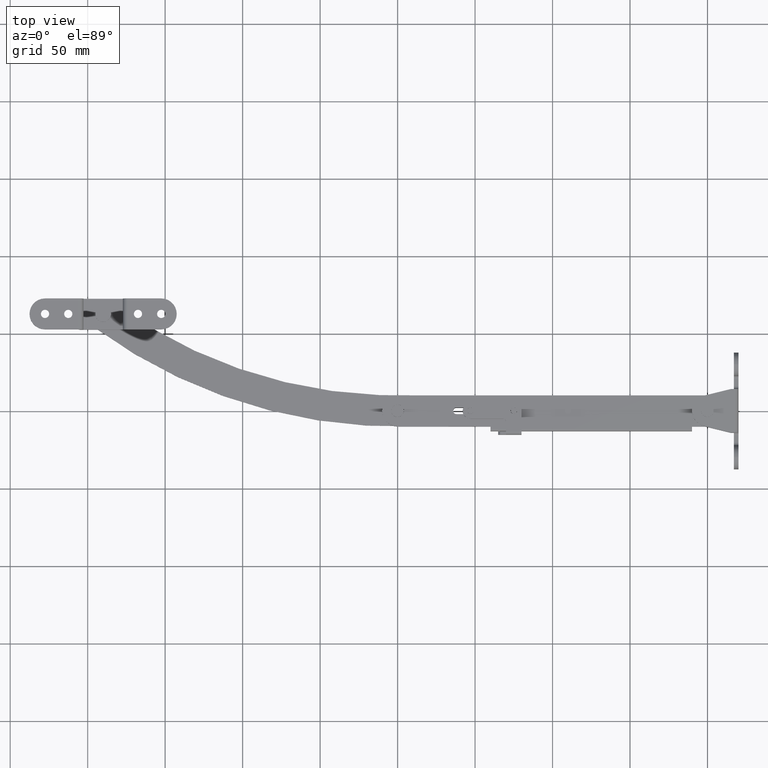
[diagram: clean part render]
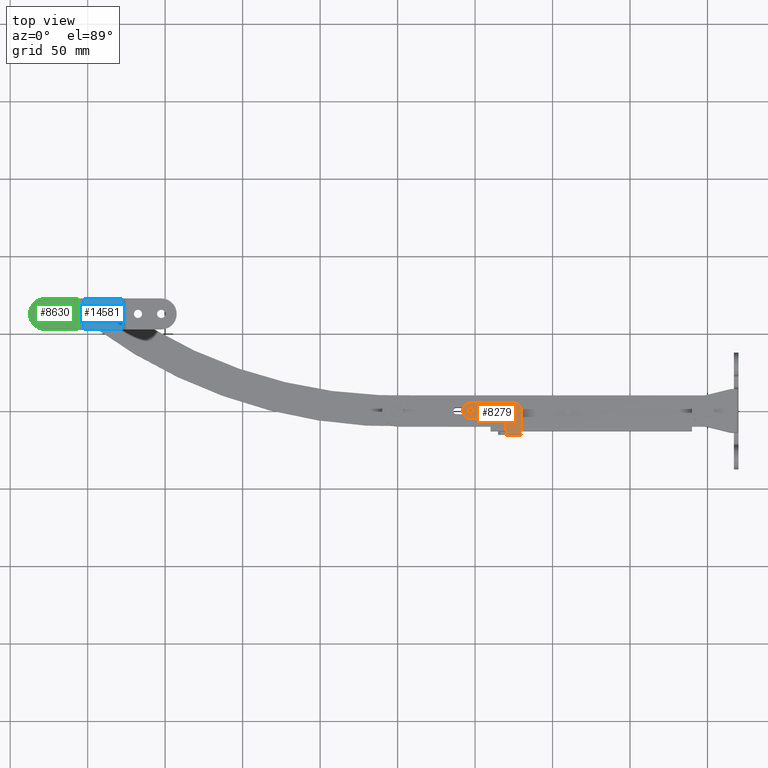
[diagram: same view with three faces highlighted in distinct colors, each labeled with its STEP entity id]
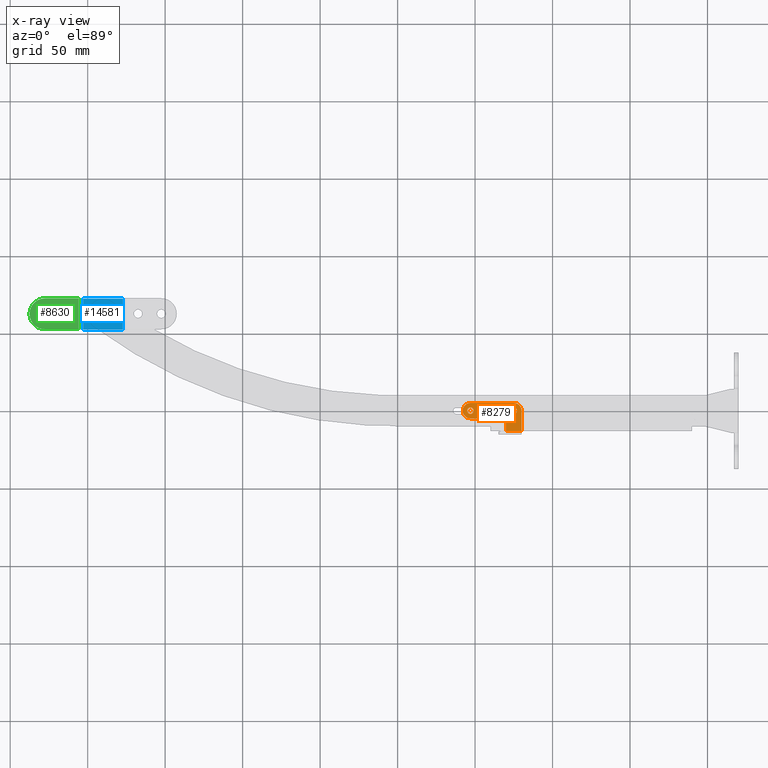
[diagram: x-ray of the same camera — body ghosted, the three highlighted faces saturated]
A machine part, top view with three faces highlighted in distinct colors.
The next image is the same camera in x-ray (body ghosted, the three faces saturated) — at least one of them is partly hidden behind the body in this view.
Their STEP definitions:

[orange] entity #8279 — the highlighted planar face has unit normal (0, 0, 1).
#69 = VERTEX_POINT ( 'NONE', #7250 ) ;
#407 = DIRECTION ( 'NONE',  ( -0.0000000000000000000, -0.0000000000000000000, 1.000000000000000000 ) ) ;
#483 = ORIENTED_EDGE ( 'NONE', *, *, #1145, .F. ) ;
#533 = CIRCLE ( 'NONE', #5860, 5.000000000000004400 ) ;
#648 = CARTESIAN_POINT ( 'NONE',  ( -157.9999690000000200, 0.0000000000000000000, 9.149993999999830800 ) ) ;
#1138 = ORIENTED_EDGE ( 'NONE', *, *, #16965, .F. ) ;
#1145 = EDGE_CURVE ( 'NONE', #69, #11822, #2030, .T. ) ;
#1200 = DIRECTION ( 'NONE',  ( -0.0000000000000000000, -0.0000000000000000000, 1.000000000000000000 ) ) ;
#1678 = EDGE_CURVE ( 'NONE', #3612, #16438, #5342, .T. ) ;
#1707 = CARTESIAN_POINT ( 'NONE',  ( -125.0000000000000000, 0.0000000000000000000, 9.149993999999830800 ) ) ;
#1745 = LINE ( 'NONE', #11905, #15532 ) ;
#1812 = EDGE_CURVE ( 'NONE', #16438, #3612, #14763, .T. ) ;
#2008 = VERTEX_POINT ( 'NONE', #15308 ) ;
#2022 = AXIS2_PLACEMENT_3D ( 'NONE', #17338, #10657, #2630 ) ;
#2030 = CIRCLE ( 'NONE', #9220, 2.049999999999996300 ) ;
#2138 = AXIS2_PLACEMENT_3D ( 'NONE', #14280, #6280, #15611 ) ;
#2242 = CARTESIAN_POINT ( 'NONE',  ( -125.0000000000000000, 5.000000000000110100, 9.149993999999830800 ) ) ;
#2525 = DIRECTION ( 'NONE',  ( -0.0000000000000000000, -0.0000000000000000000, 1.000000000000000000 ) ) ;
#2581 = LINE ( 'NONE', #2242, #5741 ) ;
#2630 = DIRECTION ( 'NONE',  ( -1.000000000000000000, 0.0000000000000000000, 0.0000000000000000000 ) ) ;
#2873 = CARTESIAN_POINT ( 'NONE',  ( -120.0000000000000000, -15.30000299999980000, 9.149993999999830800 ) ) ;
#3045 = ORIENTED_EDGE ( 'NONE', *, *, #12731, .T. ) ;
#3053 = DIRECTION ( 'NONE',  ( -1.000000000000000000, 0.0000000000000000000, 0.0000000000000000000 ) ) ;
#3612 = VERTEX_POINT ( 'NONE', #15299 ) ;
#3644 = CARTESIAN_POINT ( 'NONE',  ( -152.9999690000000200, 5.000000000000110100, 9.149993999999830800 ) ) ;
#3680 = ORIENTED_EDGE ( 'NONE', *, *, #13975, .F. ) ;
#3689 = CIRCLE ( 'NONE', #2138, 5.000000000000004400 ) ;
#4187 = DIRECTION ( 'NONE',  ( -0.0000000000000000000, -0.0000000000000000000, 1.000000000000000000 ) ) ;
#4516 = VERTEX_POINT ( 'NONE', #648 ) ;
#4721 = EDGE_CURVE ( 'NONE', #16205, #9616, #15330, .T. ) ;
#4921 = DIRECTION ( 'NONE',  ( -1.000000000000000000, -0.0000000000000000000, -0.0000000000000000000 ) ) ;
#5061 = EDGE_CURVE ( 'NONE', #6245, #2008, #1745, .T. ) ;
#5312 = DIRECTION ( 'NONE',  ( -0.0000000000000000000, -0.0000000000000000000, 1.000000000000000000 ) ) ;
#5342 = CIRCLE ( 'NONE', #17230, 2.049999999999996300 ) ;
#5713 = CARTESIAN_POINT ( 'NONE',  ( -130.0000000000000000, -7.000000000000000000, 9.149993999999830800 ) ) ;
#5741 = VECTOR ( 'NONE', #4921, 1000.000000000000000 ) ;
#5770 = VERTEX_POINT ( 'NONE', #10484 ) ;
#5855 = CARTESIAN_POINT ( 'NONE',  ( -127.0500000000000000, -2.510525938252079100E-016, 9.149993999999830800 ) ) ;
#5860 = AXIS2_PLACEMENT_3D ( 'NONE', #14799, #6796, #16135 ) ;
#5982 = AXIS2_PLACEMENT_3D ( 'NONE', #9185, #1200, #10556 ) ;
#6228 = EDGE_CURVE ( 'NONE', #16205, #2008, #10959, .T. ) ;
#6245 = VERTEX_POINT ( 'NONE', #12387 ) ;
#6280 = DIRECTION ( 'NONE',  ( -0.0000000000000000000, -0.0000000000000000000, 1.000000000000000000 ) ) ;
#6364 = LINE ( 'NONE', #2873, #16631 ) ;
#6375 = AXIS2_PLACEMENT_3D ( 'NONE', #8376, #407, #9734 ) ;
#6601 = VERTEX_POINT ( 'NONE', #3644 ) ;
#6796 = DIRECTION ( 'NONE',  ( -0.0000000000000000000, -0.0000000000000000000, 1.000000000000000000 ) ) ;
#6798 = VERTEX_POINT ( 'NONE', #17339 ) ;
#6856 = DIRECTION ( 'NONE',  ( -0.0000000000000000000, 1.000000000000000000, -0.0000000000000000000 ) ) ;
#7250 = CARTESIAN_POINT ( 'NONE',  ( -155.0499690000000000, -2.510525938252079100E-016, 9.149993999999830800 ) ) ;
#7734 = VECTOR ( 'NONE', #9449, 1000.000000000000000 ) ;
#7913 = AXIS2_PLACEMENT_3D ( 'NONE', #1707, #11074, #3053 ) ;
#7965 = VERTEX_POINT ( 'NONE', #11357 ) ;
#8257 = ORIENTED_EDGE ( 'NONE', *, *, #12822, .T. ) ;
#8279 = ADVANCED_FACE ( 'NONE', ( #13869, #9871, #13017 ), #11939, .T. ) ;
#8376 = CARTESIAN_POINT ( 'NONE',  ( -132.0000000000000000, -7.000000000000000000, 9.149993999999830800 ) ) ;
#8607 = ORIENTED_EDGE ( 'NONE', *, *, #1678, .F. ) ;
#8650 = VECTOR ( 'NONE', #16358, 1000.000000000000000 ) ;
#9185 = CARTESIAN_POINT ( 'NONE',  ( -125.0000000000000000, 0.0000000000000000000, 9.149993999999830800 ) ) ;
#9220 = AXIS2_PLACEMENT_3D ( 'NONE', #12215, #4187, #13565 ) ;
#9449 = DIRECTION ( 'NONE',  ( -1.000000000000000000, -0.0000000000000000000, -0.0000000000000000000 ) ) ;
#9616 = VERTEX_POINT ( 'NONE', #12861 ) ;
#9734 = DIRECTION ( 'NONE',  ( -1.000000000000000000, 0.0000000000000000000, 0.0000000000000000000 ) ) ;
#9765 = CARTESIAN_POINT ( 'NONE',  ( -150.9499690000000100, 0.0000000000000000000, 9.149993999999830800 ) ) ;
#9871 = FACE_BOUND ( 'NONE', #14666, .T. ) ;
#10438 = EDGE_LOOP ( 'NONE', ( #8257, #15397, #10855, #3045, #13570, #15676, #15418, #15256, #1138 ) ) ;
#10441 = EDGE_CURVE ( 'NONE', #4516, #6245, #3689, .T. ) ;
#10484 = CARTESIAN_POINT ( 'NONE',  ( -125.0000000872663900, 5.000000000000000000, 9.149993999999830800 ) ) ;
#10556 = DIRECTION ( 'NONE',  ( -1.000000000000000000, 0.0000000000000000000, 0.0000000000000000000 ) ) ;
#10567 = CARTESIAN_POINT ( 'NONE',  ( -152.9999690000000200, 0.0000000000000000000, 9.149993999999830800 ) ) ;
#10657 = DIRECTION ( 'NONE',  ( 0.0000000000000000000, 0.0000000000000000000, 1.000000000000000000 ) ) ;
#10755 = CARTESIAN_POINT ( 'NONE',  ( 0.0000000000000000000, -13.30000299999980000, 9.149993999999880500 ) ) ;
#10855 = ORIENTED_EDGE ( 'NONE', *, *, #12460, .T. ) ;
#10917 = EDGE_LOOP ( 'NONE', ( #8607, #11958 ) ) ;
#10959 = CIRCLE ( 'NONE', #6375, 2.000000000000001800 ) ;
#11074 = DIRECTION ( 'NONE',  ( -0.0000000000000000000, -0.0000000000000000000, 1.000000000000000000 ) ) ;
#11307 = LINE ( 'NONE', #10755, #7734 ) ;
#11357 = CARTESIAN_POINT ( 'NONE',  ( -120.0000000000000000, 0.0000000000000000000, 9.149993999999830800 ) ) ;
#11368 = CIRCLE ( 'NONE', #14700, 2.049999999999996300 ) ;
#11822 = VERTEX_POINT ( 'NONE', #9765 ) ;
#11905 = CARTESIAN_POINT ( 'NONE',  ( -152.9999690000000200, -5.000000000000000000, 9.149993999999830800 ) ) ;
#11906 = DIRECTION ( 'NONE',  ( -1.000000000000000000, 0.0000000000000000000, 0.0000000000000000000 ) ) ;
#11939 = PLANE ( 'NONE',  #2022 ) ;
#11958 = ORIENTED_EDGE ( 'NONE', *, *, #1812, .F. ) ;
#12194 = CIRCLE ( 'NONE', #5982, 5.000000000000004400 ) ;
#12215 = CARTESIAN_POINT ( 'NONE',  ( -152.9999690000000200, 0.0000000000000000000, 9.149993999999830800 ) ) ;
#12387 = CARTESIAN_POINT ( 'NONE',  ( -152.9999693490660200, -5.000000000000000000, 9.149993999999830800 ) ) ;
#12460 = EDGE_CURVE ( 'NONE', #5770, #6601, #2581, .T. ) ;
#12731 = EDGE_CURVE ( 'NONE', #6601, #4516, #533, .T. ) ;
#12822 = EDGE_CURVE ( 'NONE', #6798, #7965, #6364, .T. ) ;
#12861 = CARTESIAN_POINT ( 'NONE',  ( -130.0000000000000000, -13.30000299999980000, 9.149993999999830800 ) ) ;
#13017 = FACE_OUTER_BOUND ( 'NONE', #10438, .T. ) ;
#13319 = DIRECTION ( 'NONE',  ( 1.000000000000000000, -0.0000000000000000000, -0.0000000000000000000 ) ) ;
#13362 = CARTESIAN_POINT ( 'NONE',  ( -125.0000000000000000, 0.0000000000000000000, 9.149993999999830800 ) ) ;
#13565 = DIRECTION ( 'NONE',  ( -1.000000000000000000, 0.0000000000000000000, 0.0000000000000000000 ) ) ;
#13570 = ORIENTED_EDGE ( 'NONE', *, *, #10441, .T. ) ;
#13869 = FACE_BOUND ( 'NONE', #10917, .T. ) ;
#13975 = EDGE_CURVE ( 'NONE', #11822, #69, #11368, .T. ) ;
#14280 = CARTESIAN_POINT ( 'NONE',  ( -152.9999690000000200, 0.0000000000000000000, 9.149993999999830800 ) ) ;
#14589 = EDGE_CURVE ( 'NONE', #7965, #5770, #12194, .T. ) ;
#14666 = EDGE_LOOP ( 'NONE', ( #3680, #483 ) ) ;
#14676 = DIRECTION ( 'NONE',  ( -1.000000000000000000, 0.0000000000000000000, 0.0000000000000000000 ) ) ;
#14700 = AXIS2_PLACEMENT_3D ( 'NONE', #10567, #2525, #11906 ) ;
#14763 = CIRCLE ( 'NONE', #7913, 2.049999999999996300 ) ;
#14799 = CARTESIAN_POINT ( 'NONE',  ( -152.9999690000000200, 0.0000000000000000000, 9.149993999999830800 ) ) ;
#15256 = ORIENTED_EDGE ( 'NONE', *, *, #4721, .T. ) ;
#15299 = CARTESIAN_POINT ( 'NONE',  ( -122.9500000000000000, 0.0000000000000000000, 9.149993999999830800 ) ) ;
#15308 = CARTESIAN_POINT ( 'NONE',  ( -132.0000000000000000, -5.000000000000000000, 9.149993999999830800 ) ) ;
#15330 = LINE ( 'NONE', #5713, #8650 ) ;
#15397 = ORIENTED_EDGE ( 'NONE', *, *, #14589, .T. ) ;
#15418 = ORIENTED_EDGE ( 'NONE', *, *, #6228, .F. ) ;
#15532 = VECTOR ( 'NONE', #13319, 1000.000000000000000 ) ;
#15611 = DIRECTION ( 'NONE',  ( -1.000000000000000000, 0.0000000000000000000, 0.0000000000000000000 ) ) ;
#15676 = ORIENTED_EDGE ( 'NONE', *, *, #5061, .T. ) ;
#16135 = DIRECTION ( 'NONE',  ( -1.000000000000000000, 0.0000000000000000000, 0.0000000000000000000 ) ) ;
#16205 = VERTEX_POINT ( 'NONE', #16254 ) ;
#16254 = CARTESIAN_POINT ( 'NONE',  ( -130.0000000000000000, -7.000000000000000000, 9.149993999999830800 ) ) ;
#16358 = DIRECTION ( 'NONE',  ( -0.0000000000000000000, -1.000000000000000000, -0.0000000000000000000 ) ) ;
#16438 = VERTEX_POINT ( 'NONE', #5855 ) ;
#16631 = VECTOR ( 'NONE', #6856, 1000.000000000000000 ) ;
#16965 = EDGE_CURVE ( 'NONE', #6798, #9616, #11307, .T. ) ;
#17230 = AXIS2_PLACEMENT_3D ( 'NONE', #13362, #5312, #14676 ) ;
#17338 = CARTESIAN_POINT ( 'NONE',  ( 0.0000000000000000000, 0.0000000000000000000, 9.149993999999880500 ) ) ;
#17339 = CARTESIAN_POINT ( 'NONE',  ( -120.0000000000000000, -13.30000299999980000, 9.149993999999830800 ) ) ;

[blue] entity #14581 — the highlighted planar face has unit normal (0, 0, 1).
#919 = CARTESIAN_POINT ( 'NONE',  ( -395.0396720000000000, 62.32917800000009800, 6.999999999999900500 ) ) ;
#1166 = VERTEX_POINT ( 'NONE', #2841 ) ;
#1207 = DIRECTION ( 'NONE',  ( -1.000000000000000000, 0.0000000000000000000, 0.0000000000000000000 ) ) ;
#1380 = VERTEX_POINT ( 'NONE', #13015 ) ;
#1765 = LINE ( 'NONE', #4977, #8452 ) ;
#1937 = FACE_OUTER_BOUND ( 'NONE', #13628, .T. ) ;
#2046 = CARTESIAN_POINT ( 'NONE',  ( -377.2896720000000000, 1052.329178000000000, 6.999999999999889900 ) ) ;
#2113 = VERTEX_POINT ( 'NONE', #12837 ) ;
#2841 = CARTESIAN_POINT ( 'NONE',  ( -385.0396720000000000, 62.32917800000009800, 6.999999999999900500 ) ) ;
#3196 = EDGE_LOOP ( 'NONE', ( #11792, #6372 ) ) ;
#3657 = EDGE_CURVE ( 'NONE', #14319, #5283, #10772, .T. ) ;
#4318 = EDGE_CURVE ( 'NONE', #1380, #5283, #12010, .T. ) ;
#4842 = DIRECTION ( 'NONE',  ( -0.0000000000000000000, -0.0000000000000000000, 1.000000000000000000 ) ) ;
#4974 = EDGE_CURVE ( 'NONE', #12470, #1166, #6982, .T. ) ;
#4977 = CARTESIAN_POINT ( 'NONE',  ( 0.0000000000000000000, 72.32917800000008400, 6.999999999999889900 ) ) ;
#5091 = CARTESIAN_POINT ( 'NONE',  ( -402.7896720000000000, 1052.329178000000000, 6.999999999999889900 ) ) ;
#5153 = DIRECTION ( 'NONE',  ( -1.000000000000000000, 0.0000000000000000000, 0.0000000000000000000 ) ) ;
#5283 = VERTEX_POINT ( 'NONE', #12271 ) ;
#5671 = EDGE_CURVE ( 'NONE', #2113, #14319, #1765, .T. ) ;
#5707 = ORIENTED_EDGE ( 'NONE', *, *, #3657, .F. ) ;
#5760 = DIRECTION ( 'NONE',  ( 0.0000000000000000000, -1.000000000000000000, 0.0000000000000000000 ) ) ;
#6329 = EDGE_CURVE ( 'NONE', #2113, #1380, #10124, .T. ) ;
#6372 = ORIENTED_EDGE ( 'NONE', *, *, #4974, .F. ) ;
#6881 = AXIS2_PLACEMENT_3D ( 'NONE', #5091, #13190, #5153 ) ;
#6982 = CIRCLE ( 'NONE', #8018, 5.000000000000004400 ) ;
#7218 = VECTOR ( 'NONE', #10062, 1000.000000000000000 ) ;
#8018 = AXIS2_PLACEMENT_3D ( 'NONE', #17237, #9191, #1207 ) ;
#8273 = CARTESIAN_POINT ( 'NONE',  ( 0.0000000000000000000, 52.32917800000009100, 6.999999999999889900 ) ) ;
#8448 = VECTOR ( 'NONE', #12398, 1000.000000000000000 ) ;
#8452 = VECTOR ( 'NONE', #13014, 1000.000000000000000 ) ;
#8798 = EDGE_CURVE ( 'NONE', #1166, #12470, #13000, .T. ) ;
#9191 = DIRECTION ( 'NONE',  ( -0.0000000000000000000, -0.0000000000000000000, 1.000000000000000000 ) ) ;
#10062 = DIRECTION ( 'NONE',  ( 0.0000000000000000000, -1.000000000000000000, 0.0000000000000000000 ) ) ;
#10124 = LINE ( 'NONE', #12512, #13261 ) ;
#10494 = PLANE ( 'NONE',  #6881 ) ;
#10772 = LINE ( 'NONE', #2046, #7218 ) ;
#11415 = ORIENTED_EDGE ( 'NONE', *, *, #5671, .F. ) ;
#11792 = ORIENTED_EDGE ( 'NONE', *, *, #8798, .F. ) ;
#12010 = LINE ( 'NONE', #8273, #8448 ) ;
#12271 = CARTESIAN_POINT ( 'NONE',  ( -377.2896720000000000, 52.32917800000009100, 6.999999999999889900 ) ) ;
#12398 = DIRECTION ( 'NONE',  ( 1.000000000000000000, -0.0000000000000000000, -0.0000000000000000000 ) ) ;
#12467 = AXIS2_PLACEMENT_3D ( 'NONE', #12882, #4842, #14225 ) ;
#12470 = VERTEX_POINT ( 'NONE', #919 ) ;
#12512 = CARTESIAN_POINT ( 'NONE',  ( -402.7896720000000000, 1052.329178000000000, 6.999999999999889900 ) ) ;
#12837 = CARTESIAN_POINT ( 'NONE',  ( -402.7896720000000000, 72.32917800000018400, 6.999999999999889900 ) ) ;
#12882 = CARTESIAN_POINT ( 'NONE',  ( -390.0396720000000000, 62.32917800000009800, 6.999999999999900500 ) ) ;
#13000 = CIRCLE ( 'NONE', #12467, 5.000000000000004400 ) ;
#13014 = DIRECTION ( 'NONE',  ( 1.000000000000000000, -0.0000000000000000000, -0.0000000000000000000 ) ) ;
#13015 = CARTESIAN_POINT ( 'NONE',  ( -402.7896720000000000, 52.32917800000009100, 6.999999999999889900 ) ) ;
#13190 = DIRECTION ( 'NONE',  ( 0.0000000000000000000, 0.0000000000000000000, 1.000000000000000000 ) ) ;
#13261 = VECTOR ( 'NONE', #5760, 1000.000000000000000 ) ;
#13628 = EDGE_LOOP ( 'NONE', ( #17078, #5707, #11415, #15209 ) ) ;
#14225 = DIRECTION ( 'NONE',  ( -1.000000000000000000, 0.0000000000000000000, 0.0000000000000000000 ) ) ;
#14319 = VERTEX_POINT ( 'NONE', #16712 ) ;
#14581 = ADVANCED_FACE ( 'NONE', ( #16144, #1937 ), #10494, .T. ) ;
#15209 = ORIENTED_EDGE ( 'NONE', *, *, #6329, .T. ) ;
#16144 = FACE_BOUND ( 'NONE', #3196, .T. ) ;
#16712 = CARTESIAN_POINT ( 'NONE',  ( -377.2896720000000000, 72.32917800000018400, 6.999999999999889900 ) ) ;
#17078 = ORIENTED_EDGE ( 'NONE', *, *, #4318, .T. ) ;
#17237 = CARTESIAN_POINT ( 'NONE',  ( -390.0396720000000000, 62.32917800000009800, 6.999999999999900500 ) ) ;

[green] entity #8630 — the highlighted planar face has unit normal (0, 0, 1).
#293 = VERTEX_POINT ( 'NONE', #9019 ) ;
#353 = AXIS2_PLACEMENT_3D ( 'NONE', #6032, #15374, #7380 ) ;
#458 = FACE_BOUND ( 'NONE', #12917, .T. ) ;
#580 = CARTESIAN_POINT ( 'NONE',  ( 0.0000000000000000000, 52.32917800000009100, 20.00000000000000000 ) ) ;
#587 = VERTEX_POINT ( 'NONE', #9127 ) ;
#712 = AXIS2_PLACEMENT_3D ( 'NONE', #2582, #11952, #3938 ) ;
#880 = FACE_OUTER_BOUND ( 'NONE', #10639, .T. ) ;
#1418 = EDGE_LOOP ( 'NONE', ( #2441, #12987 ) ) ;
#1676 = DIRECTION ( 'NONE',  ( 0.0000000000000000000, 0.0000000000000000000, 1.000000000000000000 ) ) ;
#1898 = DIRECTION ( 'NONE',  ( 1.000000000000000000, -0.0000000000000000000, -0.0000000000000000000 ) ) ;
#2172 = CARTESIAN_POINT ( 'NONE',  ( -405.7896720000000000, 72.32917800000018400, 20.00000000000000000 ) ) ;
#2441 = ORIENTED_EDGE ( 'NONE', *, *, #4300, .F. ) ;
#2582 = CARTESIAN_POINT ( 'NONE',  ( -427.5396720000000000, 62.32917800000009800, 20.00000000000000000 ) ) ;
#2741 = AXIS2_PLACEMENT_3D ( 'NONE', #13884, #5848, #15191 ) ;
#2783 = CARTESIAN_POINT ( 'NONE',  ( -409.8896720000000200, 62.32917800000009800, 20.00000000000000000 ) ) ;
#2918 = VERTEX_POINT ( 'NONE', #2172 ) ;
#3070 = EDGE_CURVE ( 'NONE', #587, #16989, #6808, .T. ) ;
#3401 = ORIENTED_EDGE ( 'NONE', *, *, #9913, .F. ) ;
#3505 = EDGE_CURVE ( 'NONE', #9025, #12863, #12027, .T. ) ;
#3741 = CARTESIAN_POINT ( 'NONE',  ( -412.5396720000000000, 62.32917800000009800, 20.00000000000000000 ) ) ;
#3825 = VECTOR ( 'NONE', #9879, 1000.000000000000000 ) ;
#3844 = VERTEX_POINT ( 'NONE', #16969 ) ;
#3868 = CARTESIAN_POINT ( 'NONE',  ( -427.5396720000000000, 62.32917800000019800, 20.00000000000000000 ) ) ;
#3938 = DIRECTION ( 'NONE',  ( 1.000000000000000000, 0.0000000000000000000, 0.0000000000000000000 ) ) ;
#4222 = AXIS2_PLACEMENT_3D ( 'NONE', #3741, #13115, #5067 ) ;
#4300 = EDGE_CURVE ( 'NONE', #16989, #587, #8861, .T. ) ;
#4818 = EDGE_CURVE ( 'NONE', #2918, #293, #14913, .T. ) ;
#5034 = EDGE_CURVE ( 'NONE', #15593, #2918, #9248, .T. ) ;
#5067 = DIRECTION ( 'NONE',  ( 1.000000000000000000, 0.0000000000000000000, 0.0000000000000000000 ) ) ;
#5200 = DIRECTION ( 'NONE',  ( -1.000000000000000000, 0.0000000000000000000, 0.0000000000000000000 ) ) ;
#5216 = CARTESIAN_POINT ( 'NONE',  ( 0.0000000000000000000, 72.32917800000008400, 20.00000000000000000 ) ) ;
#5247 = AXIS2_PLACEMENT_3D ( 'NONE', #5853, #7262, #16626 ) ;
#5848 = DIRECTION ( 'NONE',  ( 0.0000000000000000000, 0.0000000000000000000, -1.000000000000000000 ) ) ;
#5853 = CARTESIAN_POINT ( 'NONE',  ( -437.5396720000000000, 1052.329178000000000, 20.00000000000000000 ) ) ;
#5910 = PLANE ( 'NONE',  #5247 ) ;
#6032 = CARTESIAN_POINT ( 'NONE',  ( -427.5396720000000000, 62.32917800000009800, 20.00000000000000000 ) ) ;
#6122 = CIRCLE ( 'NONE', #353, 2.649999999999985700 ) ;
#6395 = EDGE_CURVE ( 'NONE', #9025, #293, #11584, .T. ) ;
#6808 = CIRCLE ( 'NONE', #4222, 2.649999999999985700 ) ;
#7050 = AXIS2_PLACEMENT_3D ( 'NONE', #3868, #13239, #5200 ) ;
#7062 = EDGE_CURVE ( 'NONE', #10363, #3844, #6122, .T. ) ;
#7262 = DIRECTION ( 'NONE',  ( 0.0000000000000000000, 0.0000000000000000000, 1.000000000000000000 ) ) ;
#7380 = DIRECTION ( 'NONE',  ( 1.000000000000000000, 0.0000000000000000000, 0.0000000000000000000 ) ) ;
#7449 = ORIENTED_EDGE ( 'NONE', *, *, #5034, .F. ) ;
#7703 = ORIENTED_EDGE ( 'NONE', *, *, #15906, .F. ) ;
#8006 = VECTOR ( 'NONE', #1898, 1000.000000000000000 ) ;
#8630 = ADVANCED_FACE ( 'NONE', ( #458, #880, #14645 ), #5910, .T. ) ;
#8861 = CIRCLE ( 'NONE', #15842, 2.649999999999985700 ) ;
#9019 = CARTESIAN_POINT ( 'NONE',  ( -405.7896720000000000, 52.32917800000009100, 20.00000000000000000 ) ) ;
#9025 = VERTEX_POINT ( 'NONE', #11969 ) ;
#9127 = CARTESIAN_POINT ( 'NONE',  ( -415.1896720000000300, 62.32917800000009800, 20.00000000000000000 ) ) ;
#9248 = LINE ( 'NONE', #5216, #15943 ) ;
#9687 = CARTESIAN_POINT ( 'NONE',  ( -412.5396720000000000, 62.32917800000009800, 20.00000000000000000 ) ) ;
#9879 = DIRECTION ( 'NONE',  ( 0.0000000000000000000, -1.000000000000000000, 0.0000000000000000000 ) ) ;
#9913 = EDGE_CURVE ( 'NONE', #3844, #10363, #14567, .T. ) ;
#10363 = VERTEX_POINT ( 'NONE', #11493 ) ;
#10639 = EDGE_LOOP ( 'NONE', ( #16230, #15232, #7449, #7703, #11360 ) ) ;
#10952 = CARTESIAN_POINT ( 'NONE',  ( -437.5396720000000000, 62.32917800000019800, 20.00000000000000000 ) ) ;
#11041 = DIRECTION ( 'NONE',  ( 1.000000000000000000, 0.0000000000000000000, 0.0000000000000000000 ) ) ;
#11360 = ORIENTED_EDGE ( 'NONE', *, *, #3505, .F. ) ;
#11493 = CARTESIAN_POINT ( 'NONE',  ( -430.1896719999999700, 62.32917800000009800, 20.00000000000000000 ) ) ;
#11584 = LINE ( 'NONE', #580, #8006 ) ;
#11952 = DIRECTION ( 'NONE',  ( 0.0000000000000000000, 0.0000000000000000000, 1.000000000000000000 ) ) ;
#11969 = CARTESIAN_POINT ( 'NONE',  ( -427.5396720000000000, 52.32917800000009100, 20.00000000000000000 ) ) ;
#12027 = CIRCLE ( 'NONE', #2741, 10.00000000000000900 ) ;
#12689 = ORIENTED_EDGE ( 'NONE', *, *, #7062, .F. ) ;
#12863 = VERTEX_POINT ( 'NONE', #10952 ) ;
#12917 = EDGE_LOOP ( 'NONE', ( #3401, #12689 ) ) ;
#12987 = ORIENTED_EDGE ( 'NONE', *, *, #3070, .F. ) ;
#13115 = DIRECTION ( 'NONE',  ( 0.0000000000000000000, 0.0000000000000000000, 1.000000000000000000 ) ) ;
#13239 = DIRECTION ( 'NONE',  ( 0.0000000000000000000, 0.0000000000000000000, -1.000000000000000000 ) ) ;
#13859 = CIRCLE ( 'NONE', #7050, 10.00000000000000900 ) ;
#13884 = CARTESIAN_POINT ( 'NONE',  ( -427.5396720000000000, 62.32917800000019800, 20.00000000000000000 ) ) ;
#14567 = CIRCLE ( 'NONE', #712, 2.649999999999985700 ) ;
#14583 = DIRECTION ( 'NONE',  ( 1.000000000000000000, -0.0000000000000000000, -0.0000000000000000000 ) ) ;
#14645 = FACE_BOUND ( 'NONE', #1418, .T. ) ;
#14913 = LINE ( 'NONE', #16548, #3825 ) ;
#15191 = DIRECTION ( 'NONE',  ( -1.000000000000000000, 0.0000000000000000000, 0.0000000000000000000 ) ) ;
#15232 = ORIENTED_EDGE ( 'NONE', *, *, #4818, .F. ) ;
#15269 = CARTESIAN_POINT ( 'NONE',  ( -427.5396720000000000, 72.32917800000008400, 20.00000000000000000 ) ) ;
#15374 = DIRECTION ( 'NONE',  ( 0.0000000000000000000, 0.0000000000000000000, 1.000000000000000000 ) ) ;
#15593 = VERTEX_POINT ( 'NONE', #15269 ) ;
#15842 = AXIS2_PLACEMENT_3D ( 'NONE', #9687, #1676, #11041 ) ;
#15906 = EDGE_CURVE ( 'NONE', #12863, #15593, #13859, .T. ) ;
#15943 = VECTOR ( 'NONE', #14583, 1000.000000000000000 ) ;
#16230 = ORIENTED_EDGE ( 'NONE', *, *, #6395, .T. ) ;
#16548 = CARTESIAN_POINT ( 'NONE',  ( -405.7896720000000000, 1052.329178000000000, 20.00000000000000000 ) ) ;
#16626 = DIRECTION ( 'NONE',  ( -1.000000000000000000, 0.0000000000000000000, 0.0000000000000000000 ) ) ;
#16969 = CARTESIAN_POINT ( 'NONE',  ( -424.8896720000000200, 62.32917800000009800, 20.00000000000000000 ) ) ;
#16989 = VERTEX_POINT ( 'NONE', #2783 ) ;